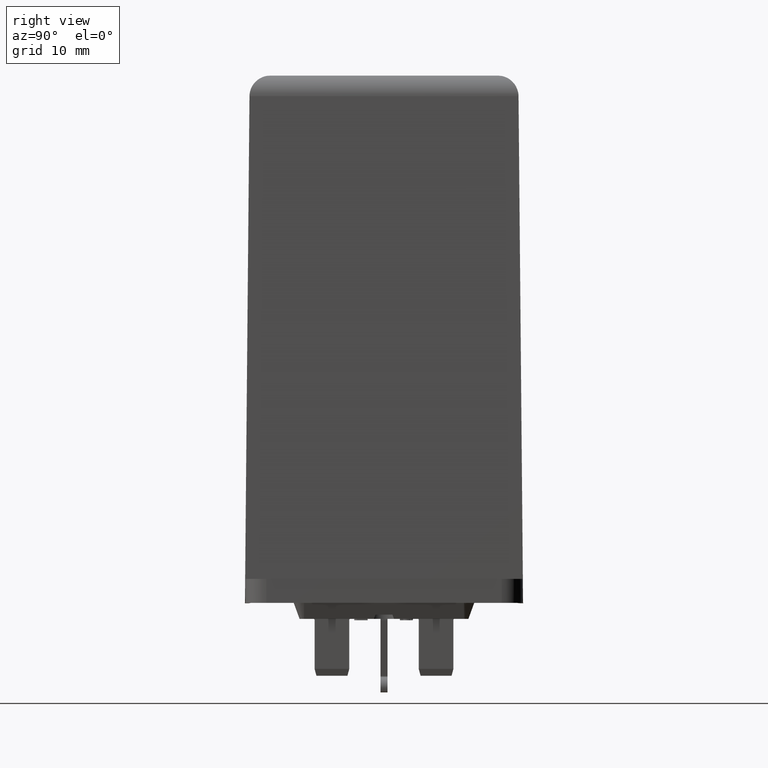
[diagram: clean part render]
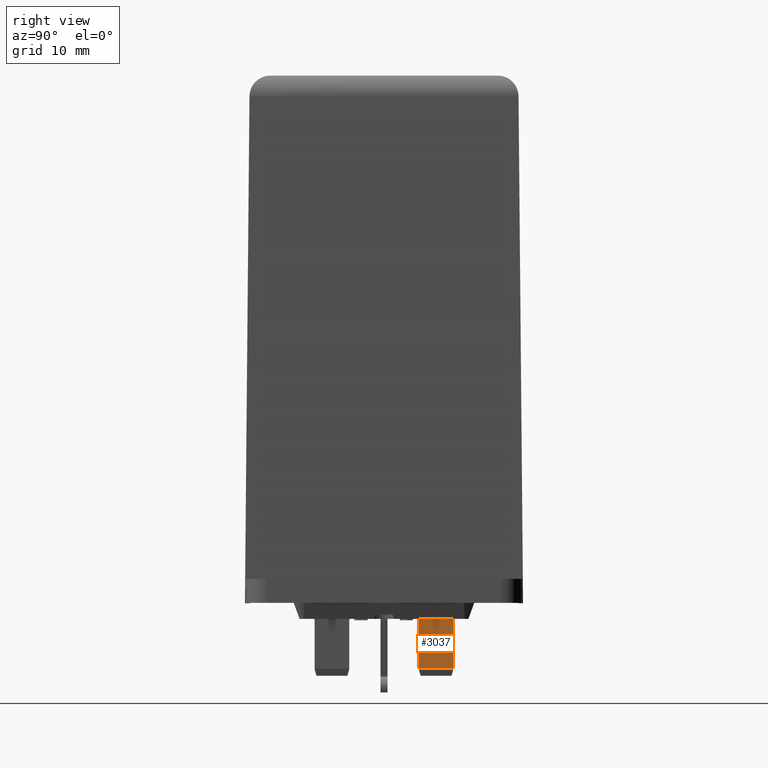
[diagram: same view with one face highlighted and labeled with its STEP entity id]
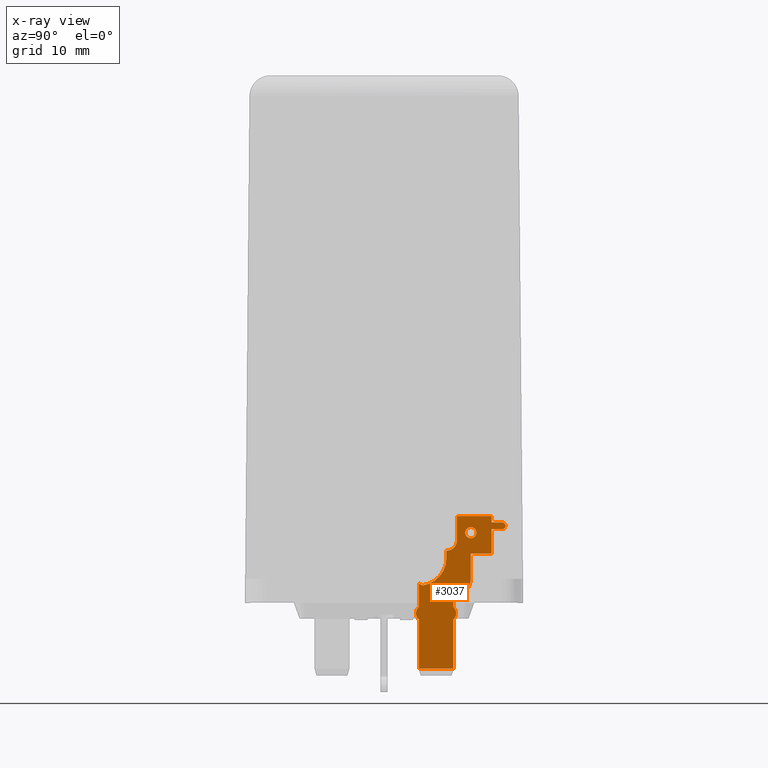
[diagram: x-ray of the same camera — body ghosted, the highlighted face saturated]
A machine part, right view. The second image highlights one B-rep face of the part: STEP entity #3037.
The next image is the same camera in x-ray: the body ghosted, the highlighted face saturated — about 0% of this face is hidden behind the body in this view.
In plain terms, the highlighted planar face has unit normal (1, 0, 0).
Its self-contained STEP definition (entity closure, byte-faithful):
#2638=CARTESIAN_POINT('',(15.500000000000000,13.299999999999994,2.388724886063081));
#2639=VERTEX_POINT('',#2638);
#2640=CARTESIAN_POINT('',(15.499999999999998,12.499999999999993,2.388724886063081));
#2641=DIRECTION('',(-1.0,0.0,0.0));
#2642=DIRECTION('',(0.0,1.0,0.0));
#2643=AXIS2_PLACEMENT_3D('',#2640,#2641,#2642);
#2644=CIRCLE('',#2643,0.800000000000000);
#2645=EDGE_CURVE('',#2639,#2639,#2644,.T.);
#2727=CARTESIAN_POINT('',(15.500000000000000,9.999999999999998,-17.211275113936924));
#2728=VERTEX_POINT('',#2727);
#2752=CARTESIAN_POINT('',(15.500000000000000,5.0,-17.211275113936924));
#2753=VERTEX_POINT('',#2752);
#2775=CARTESIAN_POINT('',(15.500000000000000,4.999999999999997,-10.105702304936841));
#2776=VERTEX_POINT('',#2775);
#2777=CARTESIAN_POINT('',(15.500000000000000,5.0,-17.211275113936928));
#2778=DIRECTION('',(0.0,0.0,1.0));
#2779=VECTOR('',#2778,7.105572809000087);
#2780=LINE('',#2777,#2779);
#2781=EDGE_CURVE('',#2753,#2776,#2780,.T.);
#2808=CARTESIAN_POINT('',(15.500000000000000,10.0,-17.211275113936924));
#2809=DIRECTION('',(0.0,-1.0,0.0));
#2810=VECTOR('',#2809,5.0);
#2811=LINE('',#2808,#2810);
#2812=EDGE_CURVE('',#2728,#2753,#2811,.T.);
#2817=CARTESIAN_POINT('',(15.500000000000000,4.874238528334415,-9.211275113936923));
#2818=DIRECTION('',(1.0,0.0,0.0));
#2819=DIRECTION('',(0.0,1.0,0.0));
#2820=AXIS2_PLACEMENT_3D('',#2817,#2818,#2819);
#2821=PLANE('',#2820);
#2822=ORIENTED_EDGE('',*,*,#2812,.F.);
#2823=CARTESIAN_POINT('',(15.500000000000000,9.999999999999998,-10.105702304936839));
#2824=VERTEX_POINT('',#2823);
#2825=CARTESIAN_POINT('',(15.500000000000000,9.999999999999996,-10.105702304936839));
#2826=DIRECTION('',(0.0,0.0,-1.0));
#2827=VECTOR('',#2826,7.105572809000085);
#2828=LINE('',#2825,#2827);
#2829=EDGE_CURVE('',#2824,#2728,#2828,.T.);
#2830=ORIENTED_EDGE('',*,*,#2829,.F.);
#2831=CARTESIAN_POINT('',(15.500000000000000,9.999999999999996,-8.316847922937008));
#2832=VERTEX_POINT('',#2831);
#2833=CARTESIAN_POINT('',(15.500000000000000,9.199999999999998,-9.211275113936923));
#2834=DIRECTION('',(-1.0,1.601521E-017,-1.790555E-017));
#2835=DIRECTION('',(2.402281E-017,0.666666666666667,-0.745355992499929));
#2836=AXIS2_PLACEMENT_3D('',#2833,#2834,#2835);
#2837=CIRCLE('',#2836,1.200000000000000);
#2838=EDGE_CURVE('',#2832,#2824,#2837,.T.);
#2839=ORIENTED_EDGE('',*,*,#2838,.F.);
#2840=CARTESIAN_POINT('',(15.500000000000000,9.999999999999996,-6.711275113936920));
#2841=VERTEX_POINT('',#2840);
#2842=CARTESIAN_POINT('',(15.500000000000000,9.999999999999995,-6.711275113936921));
#2843=DIRECTION('',(0.0,0.0,-1.0));
#2844=VECTOR('',#2843,1.605572809000087);
#2845=LINE('',#2842,#2844);
#2846=EDGE_CURVE('',#2841,#2832,#2845,.T.);
#2847=ORIENTED_EDGE('',*,*,#2846,.F.);
#2848=CARTESIAN_POINT('',(15.500000000000000,12.500000142020509,-4.213275914578079));
#2849=VERTEX_POINT('',#2848);
#2850=CARTESIAN_POINT('',(15.500000000000000,9.999999999999996,-4.211275113936920));
#2851=DIRECTION('',(-1.0,0.0,0.0));
#2852=DIRECTION('',(0.0,0.0,-1.0));
#2853=AXIS2_PLACEMENT_3D('',#2850,#2851,#2852);
#2854=CIRCLE('',#2853,2.500000000000000);
#2855=EDGE_CURVE('',#2849,#2841,#2854,.T.);
#2856=ORIENTED_EDGE('',*,*,#2855,.F.);
#2857=CARTESIAN_POINT('',(15.500000000000000,12.499999999999996,-4.211275113936920));
#2858=VERTEX_POINT('',#2857);
#2859=CARTESIAN_POINT('',(15.500000000000000,12.500000142020509,-4.211275113936920));
#2860=DIRECTION('',(0.0,0.0,-1.0));
#2861=VECTOR('',#2860,0.002000800641158);
#2862=LINE('',#2859,#2861);
#2863=EDGE_CURVE('',#2858,#2849,#2862,.T.);
#2864=ORIENTED_EDGE('',*,*,#2863,.F.);
#2865=CARTESIAN_POINT('',(15.500000000000000,12.499999999999996,-0.711275113936979));
#2866=VERTEX_POINT('',#2865);
#2867=CARTESIAN_POINT('',(15.500000000000000,12.500000142020509,-0.711275113936980));
#2868=DIRECTION('',(0.0,0.0,-1.0));
#2869=VECTOR('',#2868,3.499999999999940);
#2870=LINE('',#2867,#2869);
#2871=EDGE_CURVE('',#2866,#2858,#2870,.T.);
#2872=ORIENTED_EDGE('',*,*,#2871,.F.);
#2873=CARTESIAN_POINT('',(15.500000000000000,12.499999999999996,-0.611275113936918));
#2874=VERTEX_POINT('',#2873);
#2875=CARTESIAN_POINT('',(15.500000000000000,12.499999999999995,-0.611275113936919));
#2876=DIRECTION('',(0.0,0.0,-1.0));
#2877=VECTOR('',#2876,0.100000000000060);
#2878=LINE('',#2875,#2877);
#2879=EDGE_CURVE('',#2874,#2866,#2878,.T.);
#2880=ORIENTED_EDGE('',*,*,#2879,.F.);
#2881=CARTESIAN_POINT('',(15.500000000000000,15.499999999999991,-0.611275113936918));
#2882=VERTEX_POINT('',#2881);
#2883=CARTESIAN_POINT('',(15.500000000000000,15.499999999999993,-0.611275113936917));
#2884=DIRECTION('',(0.0,-1.0,0.0));
#2885=VECTOR('',#2884,2.999999999999996);
#2886=LINE('',#2883,#2885);
#2887=EDGE_CURVE('',#2882,#2874,#2886,.T.);
#2888=ORIENTED_EDGE('',*,*,#2887,.F.);
#2889=CARTESIAN_POINT('',(15.500000000000000,15.499999999999989,2.888724886063083));
#2890=VERTEX_POINT('',#2889);
#2891=CARTESIAN_POINT('',(15.500000000000000,15.499999999999989,2.888724886063083));
#2892=DIRECTION('',(0.0,0.0,-1.0));
#2893=VECTOR('',#2892,3.500000000000001);
#2894=LINE('',#2891,#2893);
#2895=EDGE_CURVE('',#2890,#2882,#2894,.T.);
#2896=ORIENTED_EDGE('',*,*,#2895,.F.);
#2897=CARTESIAN_POINT('',(15.500000000000000,16.999999999999989,2.888724886063083));
#2898=VERTEX_POINT('',#2897);
#2899=CARTESIAN_POINT('',(15.500000000000000,16.999999999999989,2.888724886063084));
#2900=DIRECTION('',(0.0,-1.0,0.0));
#2901=VECTOR('',#2900,1.500000000000000);
#2902=LINE('',#2899,#2901);
#2903=EDGE_CURVE('',#2898,#2890,#2902,.T.);
#2904=ORIENTED_EDGE('',*,*,#2903,.F.);
#2905=CARTESIAN_POINT('',(15.500000000000000,16.999999999999989,3.888724886063084));
#2906=VERTEX_POINT('',#2905);
#2907=CARTESIAN_POINT('',(15.500000000000000,16.999999999999989,3.388724886063084));
#2908=DIRECTION('',(-1.0,0.0,0.0));
#2909=DIRECTION('',(0.0,0.0,-1.0));
#2910=AXIS2_PLACEMENT_3D('',#2907,#2908,#2909);
#2911=CIRCLE('',#2910,0.500000000000000);
#2912=EDGE_CURVE('',#2906,#2898,#2911,.T.);
#2913=ORIENTED_EDGE('',*,*,#2912,.F.);
#2914=CARTESIAN_POINT('',(15.500000000000000,15.499999999999989,3.888724886063084));
#2915=VERTEX_POINT('',#2914);
#2916=CARTESIAN_POINT('',(15.500000000000000,15.499999999999989,3.888724886063084));
#2917=DIRECTION('',(0.0,1.0,0.0));
#2918=VECTOR('',#2917,1.500000000000000);
#2919=LINE('',#2916,#2918);
#2920=EDGE_CURVE('',#2915,#2906,#2919,.T.);
#2921=ORIENTED_EDGE('',*,*,#2920,.F.);
#2922=CARTESIAN_POINT('',(15.500000000000000,15.499999999999989,4.788724886063081));
#2923=VERTEX_POINT('',#2922);
#2924=CARTESIAN_POINT('',(15.500000000000000,15.499999999999989,4.788724886063081));
#2925=DIRECTION('',(0.0,0.0,-1.0));
#2926=VECTOR('',#2925,0.899999999999997);
#2927=LINE('',#2924,#2926);
#2928=EDGE_CURVE('',#2923,#2915,#2927,.T.);
#2929=ORIENTED_EDGE('',*,*,#2928,.F.);
#2930=CARTESIAN_POINT('',(15.500000000000000,10.499999999999991,4.788724886063078));
#2931=VERTEX_POINT('',#2930);
#2932=CARTESIAN_POINT('',(15.500000000000000,10.499999999999989,4.788724886063079));
#2933=DIRECTION('',(0.0,1.0,0.0));
#2934=VECTOR('',#2933,5.0);
#2935=LINE('',#2932,#2934);
#2936=EDGE_CURVE('',#2931,#2923,#2935,.T.);
#2937=ORIENTED_EDGE('',*,*,#2936,.F.);
#2938=CARTESIAN_POINT('',(15.500000000000000,10.499999999999991,1.288724886063077));
#2939=VERTEX_POINT('',#2938);
#2940=CARTESIAN_POINT('',(15.500000000000000,10.499999999999993,1.288724886063077));
#2941=DIRECTION('',(0.0,0.0,1.0));
#2942=VECTOR('',#2941,3.500000000000001);
#2943=LINE('',#2940,#2942);
#2944=EDGE_CURVE('',#2939,#2931,#2943,.T.);
#2945=ORIENTED_EDGE('',*,*,#2944,.F.);
#2946=CARTESIAN_POINT('',(15.500000000000000,8.999999999999993,-0.211275113936922));
#2947=VERTEX_POINT('',#2946);
#2948=CARTESIAN_POINT('',(15.500000000000000,8.999999999999993,1.288724886063077));
#2949=DIRECTION('',(1.0,0.0,0.0));
#2950=DIRECTION('',(0.0,0.0,1.0));
#2951=AXIS2_PLACEMENT_3D('',#2948,#2949,#2950);
#2952=CIRCLE('',#2951,1.500000000000000);
#2953=EDGE_CURVE('',#2947,#2939,#2952,.T.);
#2954=ORIENTED_EDGE('',*,*,#2953,.F.);
#2955=CARTESIAN_POINT('',(15.500000000000000,8.999999999999993,-1.245168710926532));
#2956=VERTEX_POINT('',#2955);
#2957=CARTESIAN_POINT('',(15.500000000000000,8.999999999999993,-1.245168710926532));
#2958=DIRECTION('',(0.0,0.0,1.0));
#2959=VECTOR('',#2958,1.033893596989610);
#2960=LINE('',#2957,#2959);
#2961=EDGE_CURVE('',#2956,#2947,#2960,.T.);
#2962=ORIENTED_EDGE('',*,*,#2961,.F.);
#2963=CARTESIAN_POINT('',(15.500000000000000,5.519615242270658,-5.211275113936921));
#2964=VERTEX_POINT('',#2963);
#2965=CARTESIAN_POINT('',(15.500000000000000,4.999999999999993,-1.245168710926532));
#2966=DIRECTION('',(1.0,-6.080775E-019,4.641319E-018));
#2967=DIRECTION('',(-4.680983E-018,-0.129903810567666,0.991526600752597));
#2968=AXIS2_PLACEMENT_3D('',#2965,#2966,#2967);
#2969=CIRCLE('',#2968,4.0);
#2970=EDGE_CURVE('',#2964,#2956,#2969,.T.);
#2971=ORIENTED_EDGE('',*,*,#2970,.F.);
#2972=CARTESIAN_POINT('',(15.500000000000000,4.999999999999995,-4.911275113936922));
#2973=VERTEX_POINT('',#2972);
#2974=CARTESIAN_POINT('',(15.500000000000000,4.999999999999994,-4.911275113936921));
#2975=DIRECTION('',(0.0,0.866025403784439,-0.499999999999999));
#2976=VECTOR('',#2975,0.600000000000001);
#2977=LINE('',#2974,#2976);
#2978=EDGE_CURVE('',#2973,#2964,#2977,.T.);
#2979=ORIENTED_EDGE('',*,*,#2978,.F.);
#2980=CARTESIAN_POINT('',(15.500000000000000,4.999999999999996,-8.316847922937008));
#2981=VERTEX_POINT('',#2980);
#2982=CARTESIAN_POINT('',(15.500000000000000,4.999999999999996,-8.316847922937008));
#2983=DIRECTION('',(0.0,0.0,1.0));
#2984=VECTOR('',#2983,3.405572809000086);
#2985=LINE('',#2982,#2984);
#2986=EDGE_CURVE('',#2981,#2973,#2985,.T.);
#2987=ORIENTED_EDGE('',*,*,#2986,.F.);
#2988=CARTESIAN_POINT('',(15.500000000000000,5.799999999999996,-9.211275113936923));
#2989=DIRECTION('',(-1.000000000000000,1.601521E-017,-1.790555E-017));
#2990=DIRECTION('',(-2.402281E-017,-0.666666666666666,0.745355992499930));
#2991=AXIS2_PLACEMENT_3D('',#2988,#2989,#2990);
#2992=CIRCLE('',#2991,1.200000000000000);
#2993=EDGE_CURVE('',#2776,#2981,#2992,.T.);
#2994=ORIENTED_EDGE('',*,*,#2993,.F.);
#2995=ORIENTED_EDGE('',*,*,#2781,.F.);
#2996=EDGE_LOOP('',(#2822,#2830,#2839,#2847,#2856,#2864,#2872,#2880,#2888,#2896,#2904,#2913,#2921,#2929,#2937,#2945,#2954,#2962,#2971,#2979,#2987,#2994,#2995));
#2997=FACE_OUTER_BOUND('',#2996,.T.);
#2998=CARTESIAN_POINT('',(15.500000000000000,6.000000142020962,-7.211275113937090));
#2999=VERTEX_POINT('',#2998);
#3000=CARTESIAN_POINT('',(15.500000000000000,6.000000142020965,-9.727941780603629));
#3001=VERTEX_POINT('',#3000);
#3002=CARTESIAN_POINT('',(15.500000000000000,6.000000142020962,-7.211275113937090));
#3003=DIRECTION('',(0.0,0.0,-1.0));
#3004=VECTOR('',#3003,2.516666666666538);
#3005=LINE('',#3002,#3004);
#3006=EDGE_CURVE('',#2999,#3001,#3005,.T.);
#3007=ORIENTED_EDGE('',*,*,#3006,.T.);
#3008=CARTESIAN_POINT('',(15.500000000000000,6.000000142020962,-7.211275113937090));
#3009=DIRECTION('',(0.0,0.0,-1.0));
#3010=VECTOR('',#3009,2.516666666666538);
#3011=LINE('',#3008,#3010);
#3012=EDGE_CURVE('',#2999,#3001,#3011,.T.);
#3013=ORIENTED_EDGE('',*,*,#3012,.F.);
#3014=EDGE_LOOP('',(#3007,#3013));
#3015=FACE_BOUND('',#3014,.T.);
#3016=CARTESIAN_POINT('',(15.500000000000000,9.000000142020054,-7.211275113937092));
#3017=VERTEX_POINT('',#3016);
#3018=CARTESIAN_POINT('',(15.500000000000000,9.000000142020056,-9.727941780603631));
#3019=VERTEX_POINT('',#3018);
#3020=CARTESIAN_POINT('',(15.500000000000000,9.000000142020054,-7.211275113937091));
#3021=DIRECTION('',(0.0,0.0,-1.0));
#3022=VECTOR('',#3021,2.516666666666538);
#3023=LINE('',#3020,#3022);
#3024=EDGE_CURVE('',#3017,#3019,#3023,.T.);
#3025=ORIENTED_EDGE('',*,*,#3024,.T.);
#3026=CARTESIAN_POINT('',(15.500000000000000,9.000000142020054,-7.211275113937091));
#3027=DIRECTION('',(0.0,0.0,-1.0));
#3028=VECTOR('',#3027,2.516666666666538);
#3029=LINE('',#3026,#3028);
#3030=EDGE_CURVE('',#3017,#3019,#3029,.T.);
#3031=ORIENTED_EDGE('',*,*,#3030,.F.);
#3032=EDGE_LOOP('',(#3025,#3031));
#3033=FACE_BOUND('',#3032,.T.);
#3034=ORIENTED_EDGE('',*,*,#2645,.T.);
#3035=EDGE_LOOP('',(#3034));
#3036=FACE_BOUND('',#3035,.T.);
#3037=ADVANCED_FACE('',(#2997,#3015,#3033,#3036),#2821,.T.);